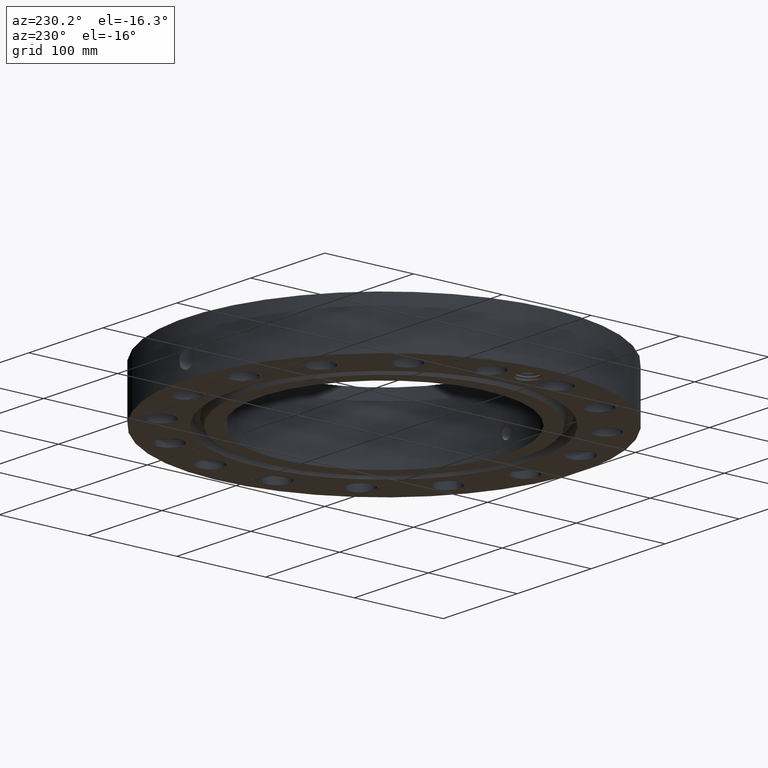
[diagram: clean part render]
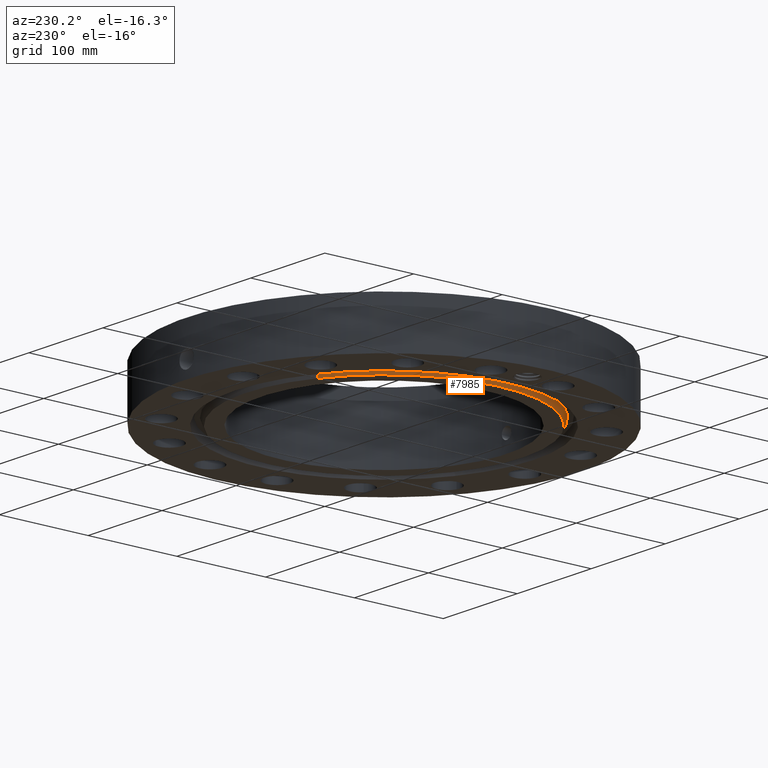
[diagram: same view with one face highlighted and labeled with its STEP entity id]
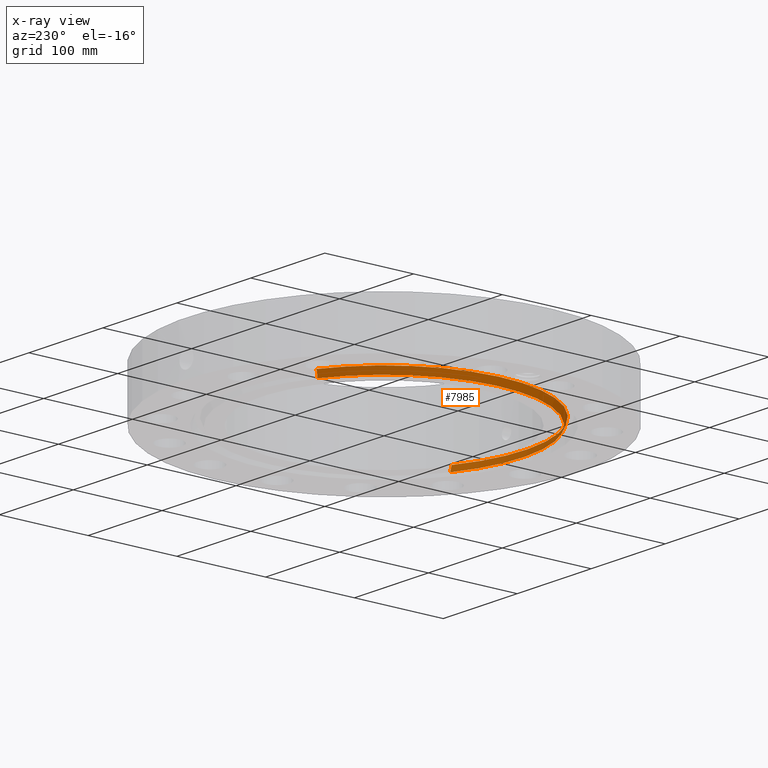
[diagram: x-ray of the same camera — body ghosted, the highlighted face saturated]
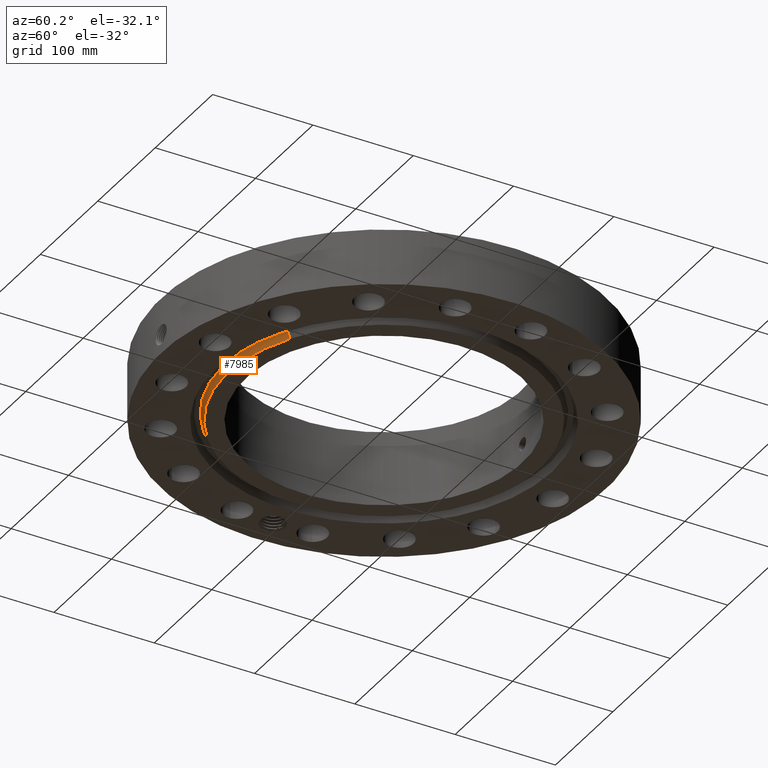
[diagram: same view with one face highlighted and labeled with its STEP entity id]
A machine part, auxiliary view. The second image highlights one B-rep face of the part: STEP entity #7985.
The next image is the same camera in x-ray: the body ghosted, the highlighted face saturated — about 0% of this face is hidden behind the body in this view.
A second angle (auxiliary view) of the same face is appended — the face is thin or edge-on in the first view.
In plain terms, the highlighted conical surface has half-angle 23 deg.
Its self-contained STEP definition (entity closure, byte-faithful):
#4517=AXIS2_PLACEMENT_3D('Circle Axis2P3D',#4515,#4516,$) ;
#7958=AXIS2_PLACEMENT_3D('Cone Axis2P3D',#7955,#7956,#7957) ;
#7976=AXIS2_PLACEMENT_3D('Circle Axis2P3D',#7974,#7975,$) ;
#4512=CARTESIAN_POINT('Vertex',(-3.0037656434,5.49835612915,0.294112664984)) ;
#4515=CARTESIAN_POINT('Axis2P3D Location',(0.,0.,0.294112664984)) ;
#4519=CARTESIAN_POINT('Vertex',(3.0037656434,-5.49835612915,0.294112664984)) ;
#7955=CARTESIAN_POINT('Axis2P3D Location',(0.,0.,-0.0600000000002)) ;
#7960=CARTESIAN_POINT('Line Origine',(2.97383908161,-5.44357592523,0.147056332492)) ;
#7964=CARTESIAN_POINT('Vertex',(2.94391251981,-5.38879572131,1.92322098754E-016)) ;
#7967=CARTESIAN_POINT('Line Origine',(-2.97383908161,5.44357592523,0.147056332492)) ;
#7971=CARTESIAN_POINT('Vertex',(-2.94391251981,5.38879572131,-1.48612530855E-016)) ;
#7974=CARTESIAN_POINT('Axis2P3D Location',(0.,0.,0.)) ;
#4516=DIRECTION('Axis2P3D Direction',(0.,0.,0.0393700787402)) ;
#7956=DIRECTION('Axis2P3D Direction',(0.,0.,0.0393700787402)) ;
#7957=DIRECTION('Axis2P3D XDirection',(0.0188750212049,-0.0345504945626,0.)) ;
#7961=DIRECTION('Vector Direction',(0.00737505833565,-0.0134999537303,0.0362403485611)) ;
#7968=DIRECTION('Vector Direction',(-0.00737505833565,0.0134999537303,0.0362403485611)) ;
#7975=DIRECTION('Axis2P3D Direction',(0.,0.,0.0393700787402)) ;
#7962=VECTOR('Line Direction',#7961,0.0393700787402) ;
#7969=VECTOR('Line Direction',#7968,0.0393700787402) ;
#7980=ORIENTED_EDGE('',*,*,#7966,.F.) ;
#7981=ORIENTED_EDGE('',*,*,#4521,.F.) ;
#7982=ORIENTED_EDGE('',*,*,#7973,.T.) ;
#7983=ORIENTED_EDGE('',*,*,#7978,.F.) ;
#7985=ADVANCED_FACE('PartBody',(#7984),#7959,.T.) ;
#4518=CIRCLE('generated circle',#4517,6.26534341944) ;
#7977=CIRCLE('generated circle',#7976,6.14050000002) ;
#7959=CONICAL_SURFACE('Cone',#7958,6.11503151105,0.401425727959) ;
#4521=EDGE_CURVE('',#4513,#4520,#4518,.T.) ;
#7966=EDGE_CURVE('',#4520,#7965,#7963,.F.) ;
#7973=EDGE_CURVE('',#4513,#7972,#7970,.F.) ;
#7978=EDGE_CURVE('',#7965,#7972,#7977,.F.) ;
#7979=EDGE_LOOP('',(#7980,#7981,#7982,#7983)) ;
#7984=FACE_OUTER_BOUND('',#7979,.T.) ;
#7963=LINE('Line',#7960,#7962) ;
#7970=LINE('Line',#7967,#7969) ;
#4513=VERTEX_POINT('',#4512) ;
#4520=VERTEX_POINT('',#4519) ;
#7965=VERTEX_POINT('',#7964) ;
#7972=VERTEX_POINT('',#7971) ;